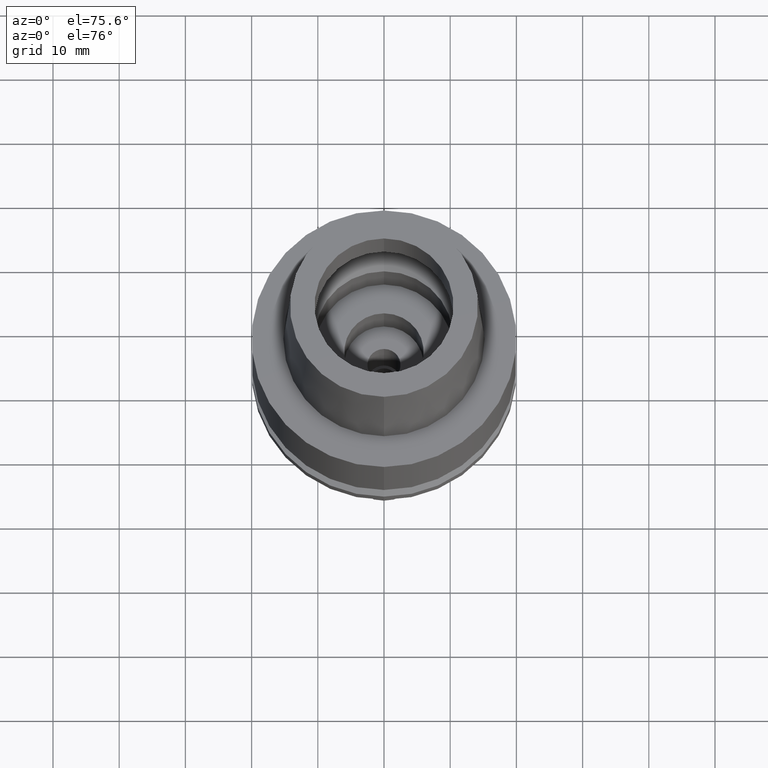
[diagram: clean part render]
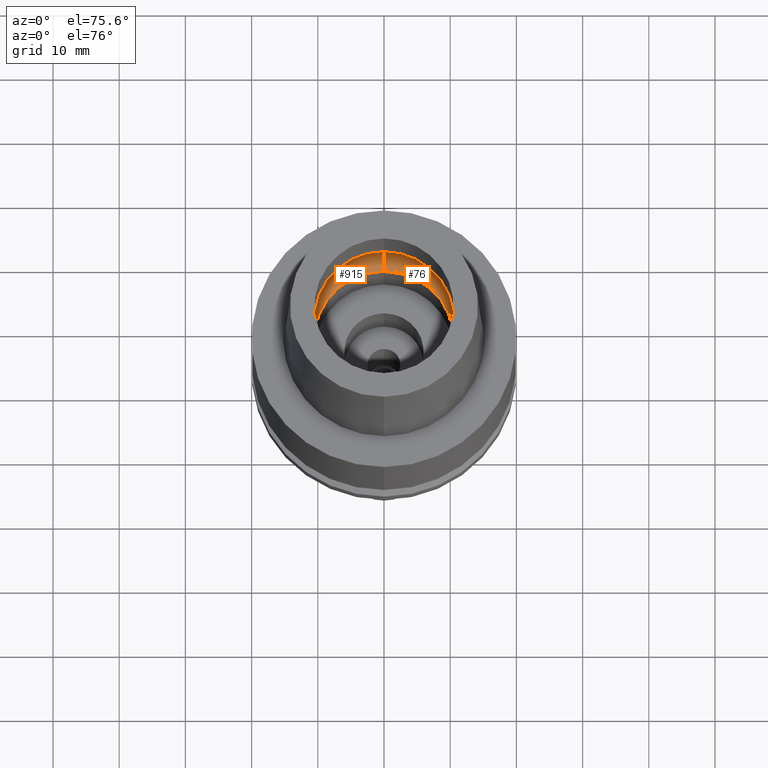
[diagram: same view with one multi-face feature highlighted, each face labeled with its STEP entity id]
A machine part, auxiliary view. The highlighted faces form ONE feature: a constant-radius fillet chain: 2 tangent blend faces with common blend radius 5 mm. The faces share edges in the B-rep.
Their STEP definitions:
[1] entity #76 (Torus):
#40 = EDGE_CURVE ( 'NONE', #1516, #2695, #1044, .T. ) ;
#76 = ADVANCED_FACE ( 'NONE', ( #2620 ), #1793, .F. ) ;
#86 = DIRECTION ( 'NONE',  ( 0.0000000000000000000, 0.0000000000000000000, 1.000000000000000000 ) ) ;
#152 = CARTESIAN_POINT ( 'NONE',  ( 0.0000000000000000000, 7.750000000000000000, 4.225999999999999979 ) ) ;
#193 = CIRCLE ( 'NONE', #716, 12.75000000000000000 ) ;
#208 = CARTESIAN_POINT ( 'NONE',  ( 0.0000000000000000000, 12.75000000000000000, 4.225999999999999979 ) ) ;
#271 = AXIS2_PLACEMENT_3D ( 'NONE', #152, #1200, #1626 ) ;
#483 = CARTESIAN_POINT ( 'NONE',  ( 0.0000000000000000000, -10.50000000000000000, 0.05017672787749000163 ) ) ;
#498 = CIRCLE ( 'NONE', #271, 4.999999999999994671 ) ;
#716 = AXIS2_PLACEMENT_3D ( 'NONE', #765, #1850, #1212 ) ;
#757 = CARTESIAN_POINT ( 'NONE',  ( 0.0000000000000000000, 0.0000000000000000000, 4.225999999999999979 ) ) ;
#765 = CARTESIAN_POINT ( 'NONE',  ( 0.0000000000000000000, 0.0000000000000000000, 4.225999999999999979 ) ) ;
#923 = ORIENTED_EDGE ( 'NONE', *, *, #1762, .F. ) ;
#970 = CARTESIAN_POINT ( 'NONE',  ( 0.0000000000000000000, -7.750000000000000000, 4.225999999999999979 ) ) ;
#1044 = CIRCLE ( 'NONE', #1085, 4.999999999999994671 ) ;
#1085 = AXIS2_PLACEMENT_3D ( 'NONE', #970, #1153, #2422 ) ;
#1153 = DIRECTION ( 'NONE',  ( -1.000000000000000000, 0.0000000000000000000, 0.0000000000000000000 ) ) ;
#1200 = DIRECTION ( 'NONE',  ( 1.000000000000000000, 0.0000000000000000000, 0.0000000000000000000 ) ) ;
#1212 = DIRECTION ( 'NONE',  ( 0.0000000000000000000, 1.000000000000000000, 0.0000000000000000000 ) ) ;
#1223 = EDGE_LOOP ( 'NONE', ( #1543, #2034, #923, #2650 ) ) ;
#1347 = DIRECTION ( 'NONE',  ( 0.0000000000000000000, 0.0000000000000000000, 1.000000000000000000 ) ) ;
#1363 = DIRECTION ( 'NONE',  ( 0.0000000000000000000, 1.000000000000000000, 0.0000000000000000000 ) ) ;
#1374 = DIRECTION ( 'NONE',  ( 0.0000000000000000000, -1.000000000000000000, 0.0000000000000000000 ) ) ;
#1516 = VERTEX_POINT ( 'NONE', #483 ) ;
#1543 = ORIENTED_EDGE ( 'NONE', *, *, #1596, .F. ) ;
#1574 = AXIS2_PLACEMENT_3D ( 'NONE', #757, #1347, #1363 ) ;
#1596 = EDGE_CURVE ( 'NONE', #1516, #1967, #2366, .T. ) ;
#1626 = DIRECTION ( 'NONE',  ( 0.0000000000000000000, 0.5500000000000007105, -0.8351646544245028281 ) ) ;
#1762 = EDGE_CURVE ( 'NONE', #2330, #2695, #193, .T. ) ;
#1793 = TOROIDAL_SURFACE ( 'NONE', #1574, 7.750000000000000000, 5.000000000000000000 ) ;
#1833 = CARTESIAN_POINT ( 'NONE',  ( 0.0000000000000000000, 0.0000000000000000000, 0.05017672787749000163 ) ) ;
#1850 = DIRECTION ( 'NONE',  ( 0.0000000000000000000, 0.0000000000000000000, -1.000000000000000000 ) ) ;
#1967 = VERTEX_POINT ( 'NONE', #2137 ) ;
#2034 = ORIENTED_EDGE ( 'NONE', *, *, #40, .T. ) ;
#2137 = CARTESIAN_POINT ( 'NONE',  ( 0.0000000000000000000, 10.50000000000000000, 0.05017672787752999741 ) ) ;
#2199 = EDGE_CURVE ( 'NONE', #1967, #2330, #498, .T. ) ;
#2330 = VERTEX_POINT ( 'NONE', #208 ) ;
#2364 = CARTESIAN_POINT ( 'NONE',  ( 0.0000000000000000000, -12.75000000000000000, 4.225999999999999979 ) ) ;
#2366 = CIRCLE ( 'NONE', #2579, 10.50000000000000000 ) ;
#2422 = DIRECTION ( 'NONE',  ( 0.0000000000000000000, -0.5500000000000007105, -0.8351646544245028281 ) ) ;
#2579 = AXIS2_PLACEMENT_3D ( 'NONE', #1833, #86, #1374 ) ;
#2620 = FACE_OUTER_BOUND ( 'NONE', #1223, .T. ) ;
#2650 = ORIENTED_EDGE ( 'NONE', *, *, #2199, .F. ) ;
#2695 = VERTEX_POINT ( 'NONE', #2364 ) ;
[2] entity #915 (Torus):
#40 = EDGE_CURVE ( 'NONE', #1516, #2695, #1044, .T. ) ;
#152 = CARTESIAN_POINT ( 'NONE',  ( 0.0000000000000000000, 7.750000000000000000, 4.225999999999999979 ) ) ;
#191 = ORIENTED_EDGE ( 'NONE', *, *, #1926, .F. ) ;
#192 = DIRECTION ( 'NONE',  ( 0.0000000000000000000, -1.000000000000000000, 0.0000000000000000000 ) ) ;
#208 = CARTESIAN_POINT ( 'NONE',  ( 0.0000000000000000000, 12.75000000000000000, 4.225999999999999979 ) ) ;
#226 = CIRCLE ( 'NONE', #884, 12.75000000000000000 ) ;
#234 = DIRECTION ( 'NONE',  ( 0.0000000000000000000, 0.0000000000000000000, 1.000000000000000000 ) ) ;
#271 = AXIS2_PLACEMENT_3D ( 'NONE', #152, #1200, #1626 ) ;
#400 = ORIENTED_EDGE ( 'NONE', *, *, #1781, .F. ) ;
#483 = CARTESIAN_POINT ( 'NONE',  ( 0.0000000000000000000, -10.50000000000000000, 0.05017672787749000163 ) ) ;
#498 = CIRCLE ( 'NONE', #271, 4.999999999999994671 ) ;
#547 = EDGE_LOOP ( 'NONE', ( #400, #1104, #191, #956 ) ) ;
#630 = TOROIDAL_SURFACE ( 'NONE', #2149, 7.750000000000000000, 5.000000000000000000 ) ;
#832 = DIRECTION ( 'NONE',  ( 0.0000000000000000000, 1.000000000000000000, 0.0000000000000000000 ) ) ;
#884 = AXIS2_PLACEMENT_3D ( 'NONE', #1229, #2437, #192 ) ;
#915 = ADVANCED_FACE ( 'NONE', ( #1283 ), #630, .F. ) ;
#956 = ORIENTED_EDGE ( 'NONE', *, *, #2199, .T. ) ;
#970 = CARTESIAN_POINT ( 'NONE',  ( 0.0000000000000000000, -7.750000000000000000, 4.225999999999999979 ) ) ;
#1044 = CIRCLE ( 'NONE', #1085, 4.999999999999994671 ) ;
#1078 = DIRECTION ( 'NONE',  ( 0.0000000000000000000, 0.0000000000000000000, 1.000000000000000000 ) ) ;
#1085 = AXIS2_PLACEMENT_3D ( 'NONE', #970, #1153, #2422 ) ;
#1104 = ORIENTED_EDGE ( 'NONE', *, *, #40, .F. ) ;
#1153 = DIRECTION ( 'NONE',  ( -1.000000000000000000, 0.0000000000000000000, 0.0000000000000000000 ) ) ;
#1200 = DIRECTION ( 'NONE',  ( 1.000000000000000000, 0.0000000000000000000, 0.0000000000000000000 ) ) ;
#1229 = CARTESIAN_POINT ( 'NONE',  ( 0.0000000000000000000, 0.0000000000000000000, 4.225999999999999979 ) ) ;
#1283 = FACE_OUTER_BOUND ( 'NONE', #547, .T. ) ;
#1448 = CARTESIAN_POINT ( 'NONE',  ( 0.0000000000000000000, 0.0000000000000000000, 4.225999999999999979 ) ) ;
#1511 = CARTESIAN_POINT ( 'NONE',  ( 0.0000000000000000000, 0.0000000000000000000, 0.05017672787749000163 ) ) ;
#1516 = VERTEX_POINT ( 'NONE', #483 ) ;
#1626 = DIRECTION ( 'NONE',  ( 0.0000000000000000000, 0.5500000000000007105, -0.8351646544245028281 ) ) ;
#1781 = EDGE_CURVE ( 'NONE', #2695, #2330, #226, .T. ) ;
#1911 = DIRECTION ( 'NONE',  ( 0.0000000000000000000, 1.000000000000000000, 0.0000000000000000000 ) ) ;
#1926 = EDGE_CURVE ( 'NONE', #1967, #1516, #2287, .T. ) ;
#1967 = VERTEX_POINT ( 'NONE', #2137 ) ;
#2030 = AXIS2_PLACEMENT_3D ( 'NONE', #1511, #234, #832 ) ;
#2137 = CARTESIAN_POINT ( 'NONE',  ( 0.0000000000000000000, 10.50000000000000000, 0.05017672787752999741 ) ) ;
#2149 = AXIS2_PLACEMENT_3D ( 'NONE', #1448, #1078, #1911 ) ;
#2199 = EDGE_CURVE ( 'NONE', #1967, #2330, #498, .T. ) ;
#2287 = CIRCLE ( 'NONE', #2030, 10.50000000000000000 ) ;
#2330 = VERTEX_POINT ( 'NONE', #208 ) ;
#2364 = CARTESIAN_POINT ( 'NONE',  ( 0.0000000000000000000, -12.75000000000000000, 4.225999999999999979 ) ) ;
#2422 = DIRECTION ( 'NONE',  ( 0.0000000000000000000, -0.5500000000000007105, -0.8351646544245028281 ) ) ;
#2437 = DIRECTION ( 'NONE',  ( 0.0000000000000000000, 0.0000000000000000000, -1.000000000000000000 ) ) ;
#2695 = VERTEX_POINT ( 'NONE', #2364 ) ;